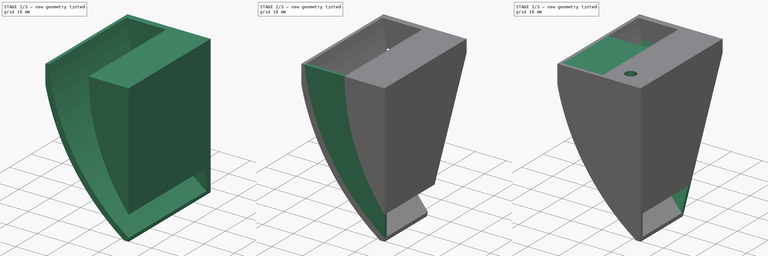
[diagram: build sequence overview — one tinted view per stage of 3, left to right]
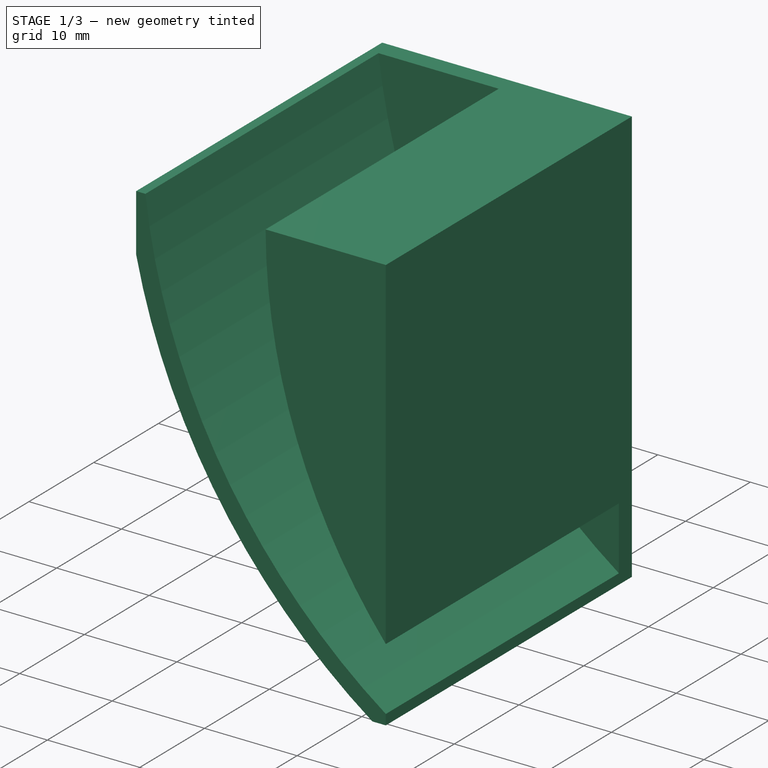
[diagram: stage 1 of 3 — iso view after this stage's code; geometry added in this stage tinted green]
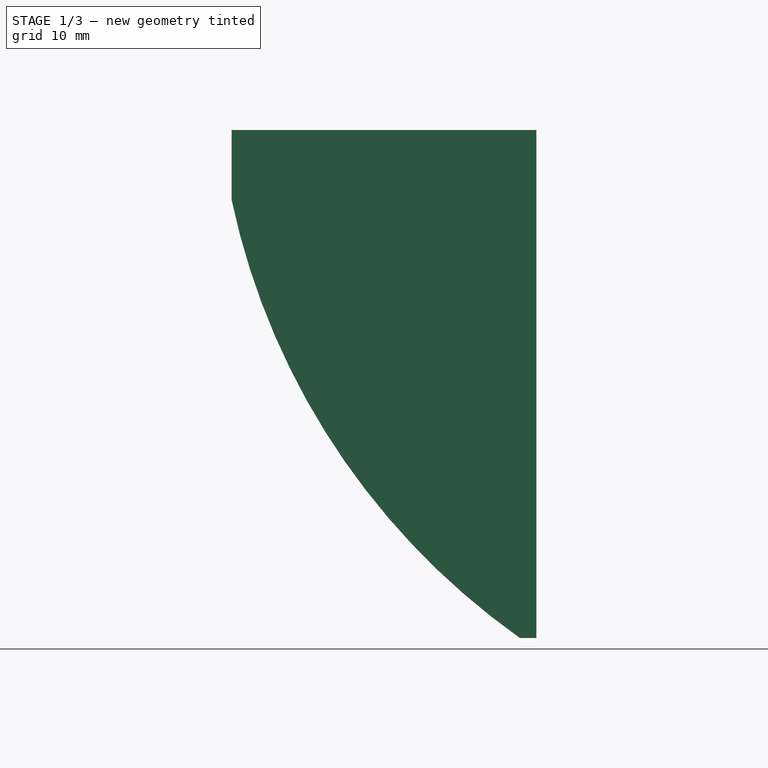
[diagram: stage 1 of 3 — front view after this stage's code; geometry added in this stage tinted green]
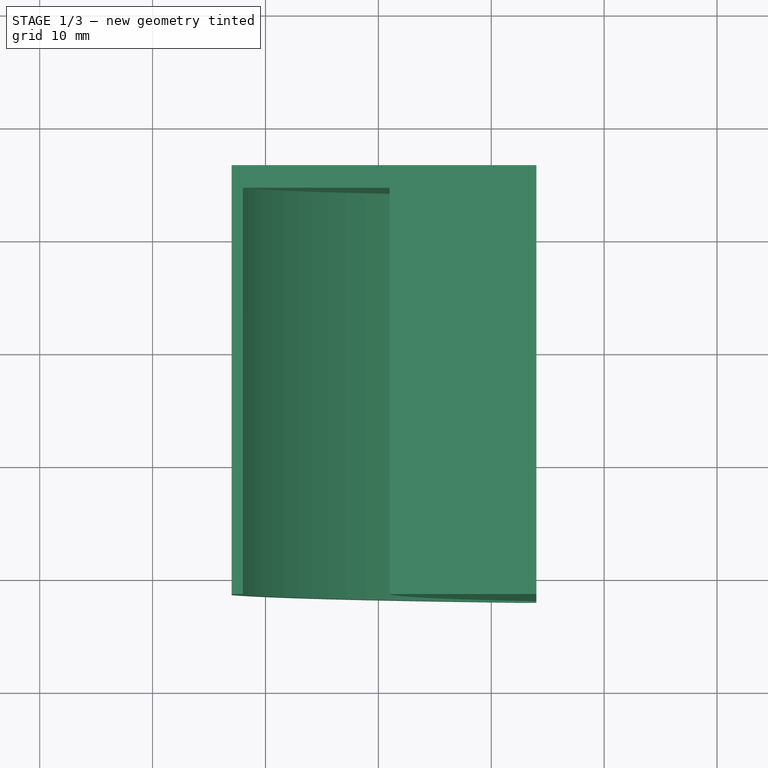
[diagram: stage 1 of 3 — top view after this stage's code; geometry added in this stage tinted green]
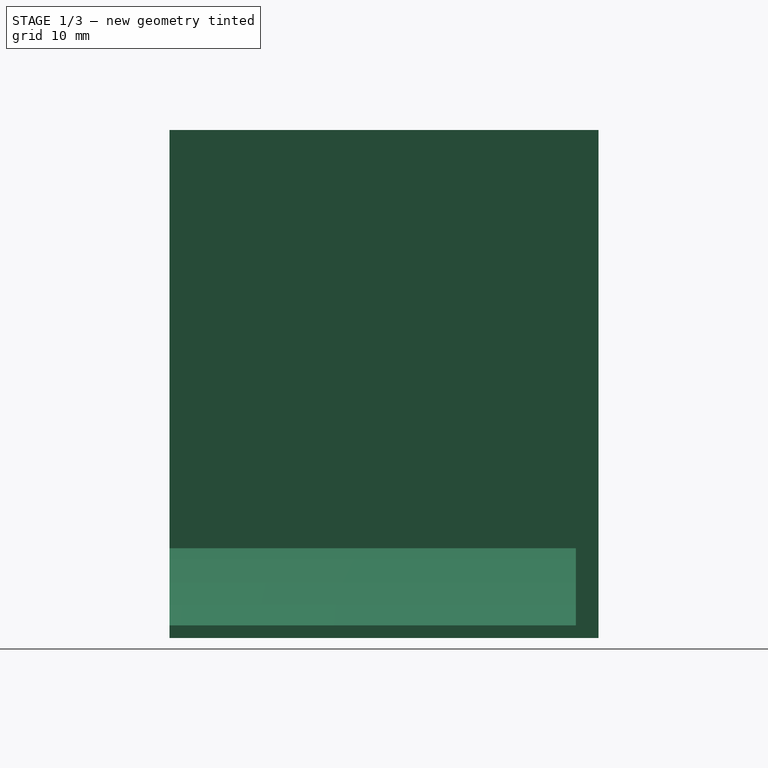
[diagram: stage 1 of 3 — right view after this stage's code; geometry added in this stage tinted green]
FCSTD DOCUMENT  (FreeCAD 0.19R)
Label: FanDuct2
License: All rights reserved
LicenseURL: http://en.wikipedia.org/wiki/All_rights_reserved
objects: Sketcher::SketchObject×9, PartDesign::Pad×4, PartDesign::Pocket×4, PartDesign::Body×1
note: 26 computed .brp shape members not serialized (recipe doc carries the construction recipe); baked Part::Feature solids carry a one-line shape summary decoded from their .brp

FEATURE [Sketcher::SketchObject] Sketch
  FullyConstrained = true
  MapMode = 5
  Support = -> [XY_Plane]
  sketch-geometry (4):
    g0: LineSegment StartX=-16 StartY=6 StartZ=0 EndX=-16 EndY=-32 EndZ=0
    g1: LineSegment StartX=-16 StartY=-32 StartZ=0 EndX=-43 EndY=-32 EndZ=0
    g2: LineSegment StartX=-43 StartY=-32 StartZ=0 EndX=-43 EndY=6 EndZ=0
    g3: LineSegment StartX=-43 StartY=6 StartZ=0 EndX=-16 EndY=6 EndZ=0
  constraints (12):
    c: Coincident(g0,g1)
    c: Horizontal(g1)
    c: Coincident(g1,g2)
    c: Vertical(g2)
    c: Coincident(g3,g0)
    c: Vertical(g0)
    c: DistanceX(g0) = -16
    c: DistanceY(g0) = 6
    c: Horizontal(g3)
    c: DistanceY(g0) = -32
    c: DistanceX(g1) = -43
    c: Coincident(g3,g2)
FEATURE [PartDesign::Pad] Pad
  Direction = (1,1,1)
  Length = 45
  Length2 = 100
  Profile = -> Sketch
  Reversed = true
  Type = 0
FEATURE [Sketcher::SketchObject] Sketch002
  FullyConstrained = true
  MapMode = 5
  Placement = pos=(0,6,0) rot=(0,0.707107,0.707107;3.14159rad)
  Support = -> [Pad]
FEATURE [Sketcher::SketchObject] Sketch003
  FullyConstrained = false
  MapMode = 5
  Placement = pos=(0,-32,0) rot=(1,0,0;1.5708rad)
  Support = -> [Pad]
  sketch-geometry (3):
    g0: ArcOfCircle CenterX=19.4001 CenterY=7.0637 CenterZ=0 NormalX=0 NormalY=0 NormalZ=1 AngleXU=0 Radius=63.7924 StartAngle=3.25255 EndAngle=4.15384
    g1: LineSegment StartX=-14.407 StartY=-47.0339 StartZ=0 EndX=-67.0616 EndY=-46.1936 EndZ=0
    g2: LineSegment StartX=-67.0616 StartY=-46.1936 StartZ=0 EndX=-44 EndY=0 EndZ=0
  constraints (8):
    c: PointOnObject(g0,g-1)
    c: DistanceX(g0) = -44
    c: DistanceX(g0) = 19.4001
    c: DistanceY(g0) = 7.0637
    c: DistanceX(g0) = -14.407
    c: Coincident(g0,g1)
    c: Coincident(g1,g2)
    c: Coincident(g2,g0)
FEATURE [PartDesign::Pocket] Pocket
  BaseFeature = -> Pad
  Length = 5
  Length2 = 100
  Profile = -> Sketch003
  Type = 1
FEATURE [Sketcher::SketchObject] Sketch004
  ExternalGeometry = -> [Pocket]
  FullyConstrained = true
  MapMode = 5
  Placement = pos=(0,-32,0) rot=(1,0,0;1.5708rad)
  Support = -> [Pocket]
  sketch-geometry (4):
    g0: ArcOfCircle CenterX=30.7872 CenterY=0.17109 CenterZ=0 NormalX=0 NormalY=0 NormalZ=1 AngleXU=0 Radius=59.7875 StartAngle=3.14445 EndAngle=3.99216
    g1: ArcOfCircle CenterX=20.3339 CenterY=7.28534 CenterZ=0 NormalX=0 NormalY=0 NormalZ=1 AngleXU=0 Radius=62.7582 StartAngle=3.25794 EndAngle=4.18278
    g2: LineSegment StartX=-8.6459 StartY=-44.7685 StartZ=0 EndX=-11.3714 EndY=-46.8752 EndZ=0
    g3: LineSegment StartX=-29 StartY=-5e-15 StartZ=0 EndX=-42 EndY=0 EndZ=0
  constraints (14):
    c: PointOnObject(g1,g-1)
    c: Distance(g1,g-3) = 1
    c: PointOnObject(g0,g-1)
    c: Distance(g0,g1) = 13
    c: Coincident(g0,g2)
    c: Coincident(g3,g0)
    c: Coincident(g3,g1)
    c: Coincident(g2,g1)
    c: DistanceX(g0) = -8.6459
    c: DistanceY(g0) = -44.7685
    c: DistanceX(g1) = -11.3714
    c: DistanceY(g1) = -46.8752
    c: DistanceX(g1) = 20.3339
    c: DistanceX(g0) = 30.7872
FEATURE [PartDesign::Pocket] Pocket001
  BaseFeature = -> Pocket
  Length = 36
  Length2 = 100
  Profile = -> Sketch004
  Type = 0
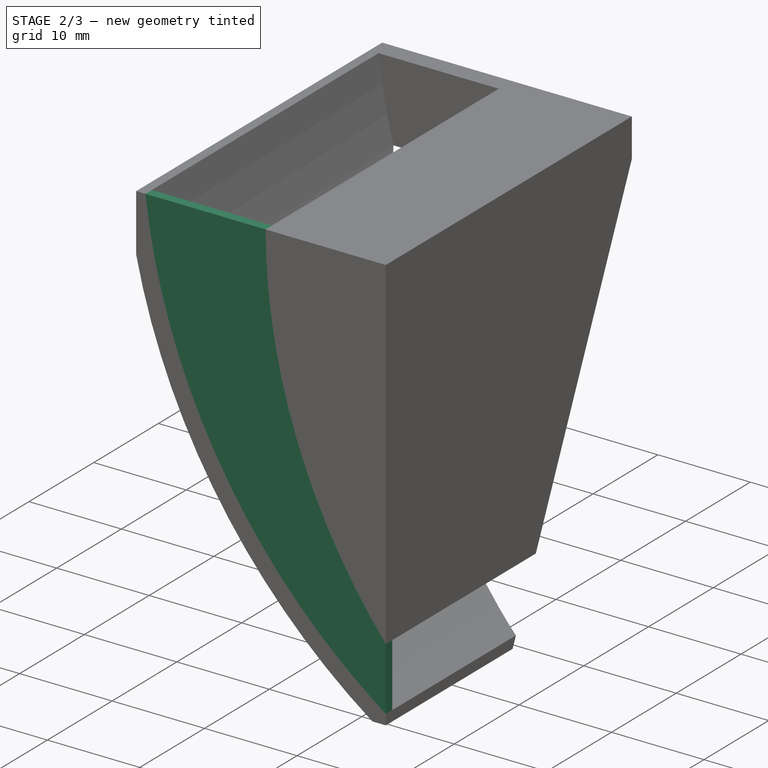
[diagram: stage 2 of 3 — iso view after this stage's code; geometry added in this stage tinted green]
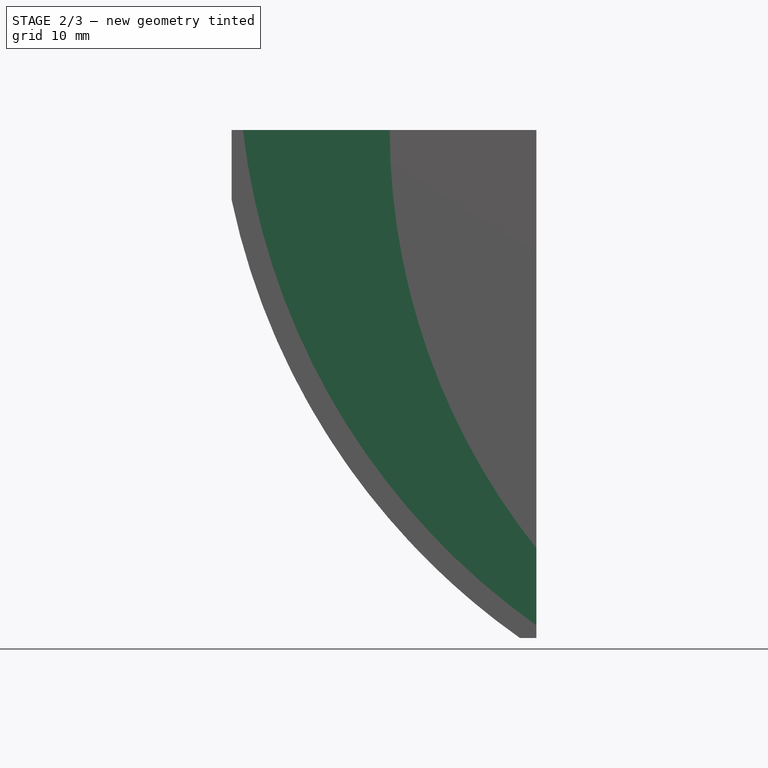
[diagram: stage 2 of 3 — front view after this stage's code; geometry added in this stage tinted green]
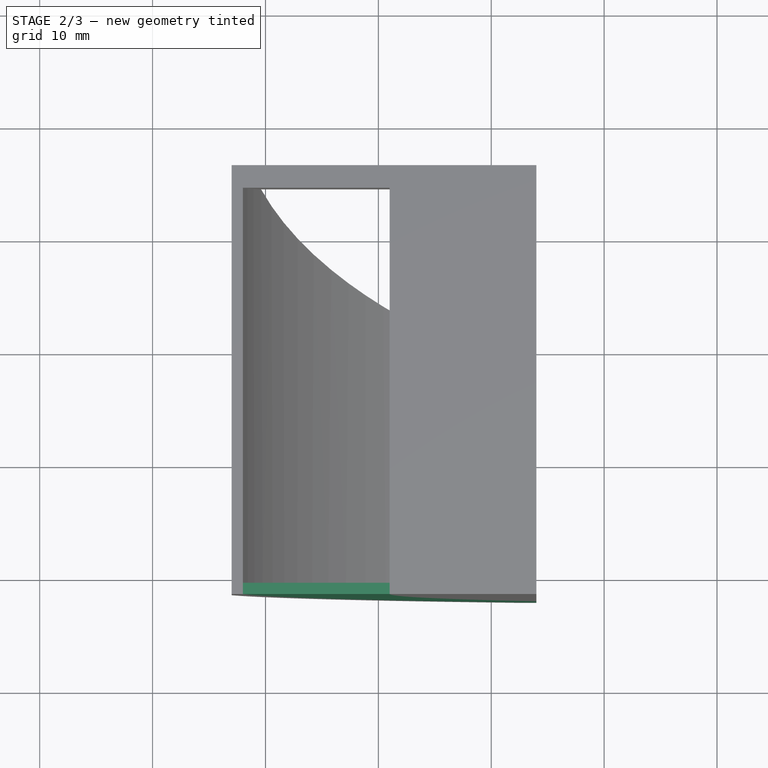
[diagram: stage 2 of 3 — top view after this stage's code; geometry added in this stage tinted green]
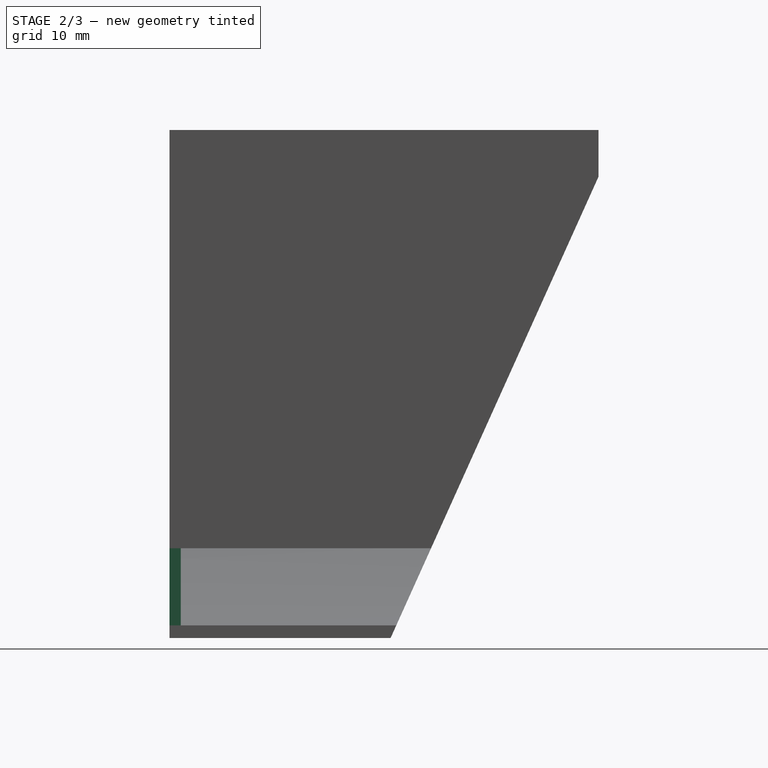
[diagram: stage 2 of 3 — right view after this stage's code; geometry added in this stage tinted green]
FEATURE [Sketcher::SketchObject] Sketch005
  FullyConstrained = false
  MapMode = 5
  Placement = pos=(-16,0,0) rot=(0.57735,0.57735,0.57735;2.0944rad)
  Support = -> [Pocket001]
  sketch-geometry (3):
    g0: LineSegment StartX=15.6864 StartY=17.3504 StartZ=0 EndX=-17.6483 EndY=-56.6108 EndZ=0
    g1: LineSegment StartX=15.6864 StartY=17.3504 StartZ=0 EndX=15.6864 EndY=-59.9964 EndZ=0
    g2: LineSegment StartX=-17.6483 StartY=-56.6108 StartZ=0 EndX=15.6864 EndY=-59.9964 EndZ=0
  constraints (4):
    c: Coincident(g1,g0)
    c: Vertical(g1)
    c: Coincident(g2,g0)
    c: Coincident(g2,g1)
FEATURE [PartDesign::Pocket] Pocket002
  BaseFeature = -> Pocket001
  Length = 5
  Length2 = 100
  Profile = -> Sketch005
  Type = 1
FEATURE [Sketcher::SketchObject] Sketch006
  ExternalGeometry = -> [Pocket002]
  FullyConstrained = true
  MapMode = 5
  Placement = pos=(0,-32,0) rot=(1,0,0;1.5708rad)
  Support = -> [Pocket002]
  sketch-geometry (5):
    g0: ArcOfCircle CenterX=19.4001 CenterY=7.0637 CenterZ=0 NormalX=0 NormalY=0 NormalZ=1 AngleXU=0 Radius=63.7924 StartAngle=3.3509 EndAngle=4.09634
    g1: LineSegment StartX=-43 StartY=-6.19134 StartZ=0 EndX=-43 EndY=0 EndZ=0
    g2: LineSegment StartX=-43 StartY=0 StartZ=0 EndX=-16 EndY=0 EndZ=0
    g3: LineSegment StartX=-16 StartY=0 StartZ=0 EndX=-16 EndY=-45 EndZ=0
    g4: LineSegment StartX=-17.46 StartY=-45.0017 StartZ=0 EndX=-16 EndY=-45 EndZ=0
  constraints (12):
    c: Coincident(g0,g-3)
    c: Coincident(g0,g-3)
    c: Coincident(g1,g0)
    c: PointOnObject(g1,g-1)
    c: Vertical(g1)
    c: Coincident(g2,g1)
    c: Coincident(g2,g-4)
    c: Coincident(g3,g2)
    c: Coincident(g3,g-5)
    c: Coincident(g4,g0)
    c: Coincident(g4,g3)
    c: Distance(g4) = 1.46
FEATURE [PartDesign::Pad] Pad001
  BaseFeature = -> Pocket002
  Direction = (1,1,1)
  Length = 1
  Length2 = 100
  Profile = -> Sketch006
  Reversed = true
  Type = 0
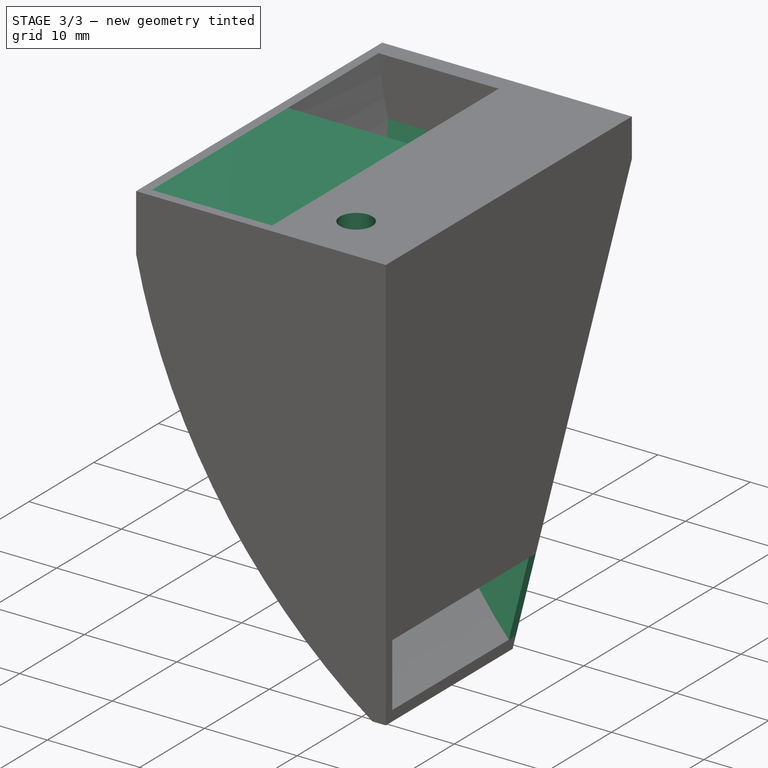
[diagram: stage 3 of 3 — iso view after this stage's code; geometry added in this stage tinted green]
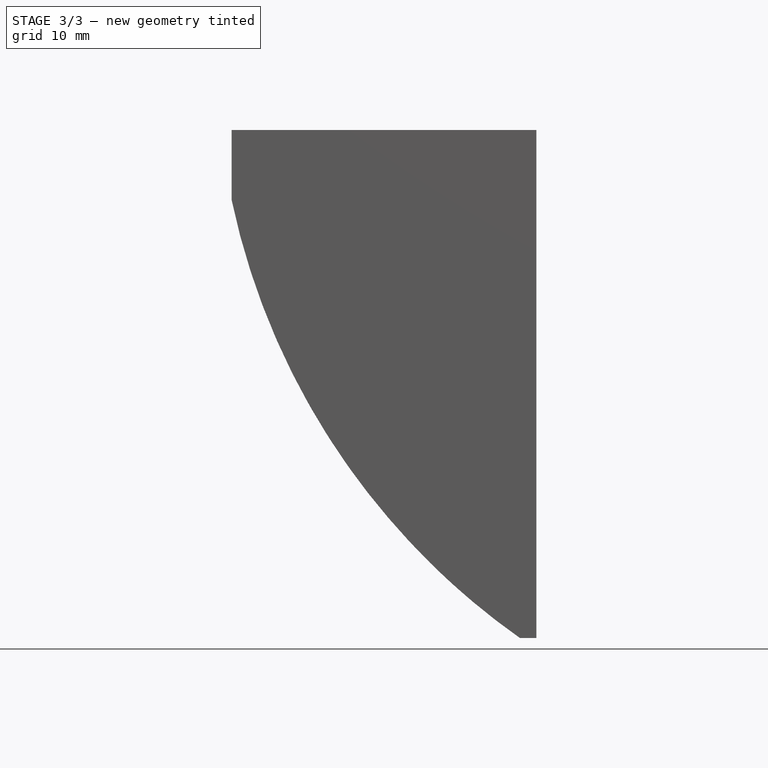
[diagram: stage 3 of 3 — front view after this stage's code; geometry added in this stage tinted green]
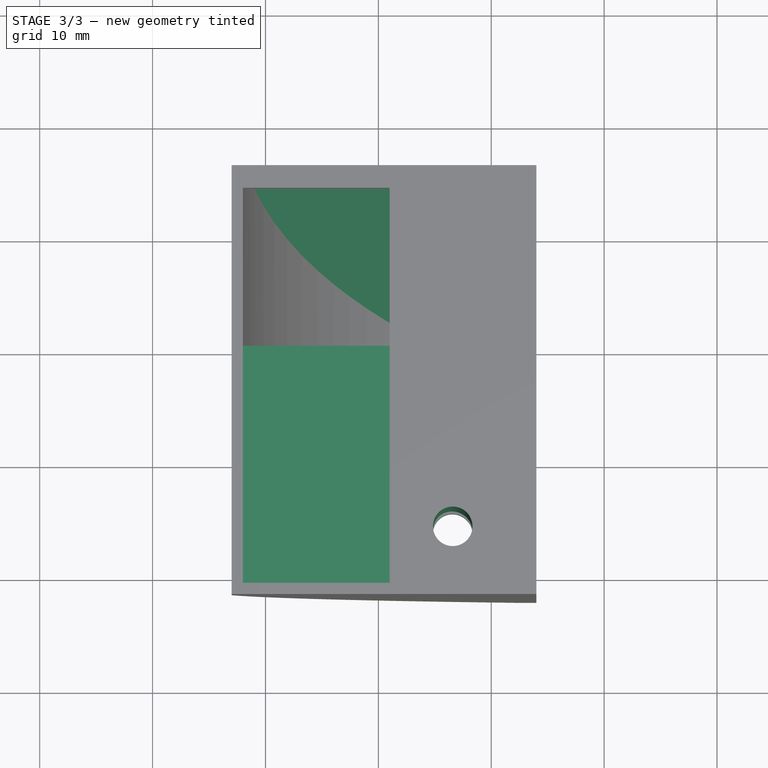
[diagram: stage 3 of 3 — top view after this stage's code; geometry added in this stage tinted green]
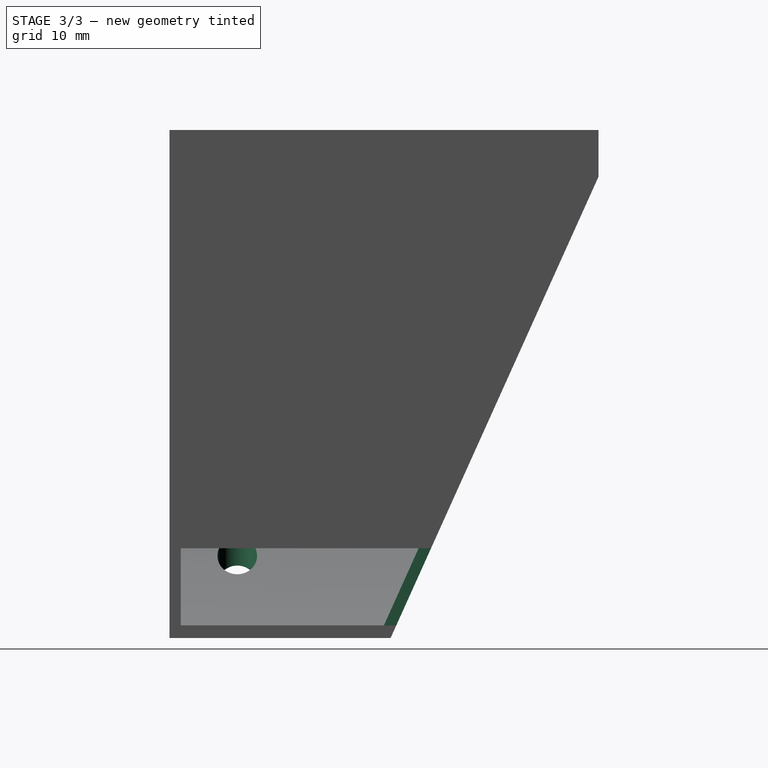
[diagram: stage 3 of 3 — right view after this stage's code; geometry added in this stage tinted green]
FEATURE [Sketcher::SketchObject] Sketch007
  ExternalGeometry = -> [Pad001]
  FullyConstrained = true
  MapMode = 5
  Placement = pos=(0,6.5383,-2.94684) rot=(0,0.83991,0.542725;3.14159rad)
  Support = -> [Pad001]
  sketch-geometry (4):
    g0: LineSegment StartX=16 StartY=-1.31007 StartZ=0 EndX=43 EndY=-1.31007 EndZ=0
    g1: LineSegment StartX=16 StartY=-1.31007 StartZ=0 EndX=16 EndY=-46.127 EndZ=0
    g2: LineSegment StartX=16 StartY=-46.127 StartZ=0 EndX=17.4624 EndY=-46.127 EndZ=0
    g3: ArcOfCircle CenterX=-28.2721 CenterY=9.61781 CenterZ=0 NormalX=0 NormalY=0 NormalZ=1 AngleXU=0 Radius=72.105 StartAngle=5.39946 EndAngle=6.13104
  constraints (9):
    c: Coincident(g-6,g0)
    c: Coincident(g0,g-3)
    c: Coincident(g0,g1)
    c: Coincident(g1,g-7)
    c: Coincident(g1,g2)
    c: Coincident(g2,g-7)
    c: Coincident(g3,g0)
    c: Coincident(g3,g2)
    c: DistanceX(g3) = -28.2721
FEATURE [PartDesign::Pad] Pad002
  BaseFeature = -> Pad001
  Direction = (1,1,1)
  Length = 1
  Length2 = 100
  Profile = -> Sketch007
  Reversed = true
  Type = 0
FEATURE [Sketcher::SketchObject] Sketch008
  ExternalGeometry = -> [Pad002]
  FullyConstrained = true
  MapMode = 5
  Support = -> [Pad002]
  sketch-geometry (4):
    g0: LineSegment StartX=-16 StartY=-10 StartZ=0 EndX=-43 EndY=-10 EndZ=0
    g1: LineSegment StartX=-43 StartY=-10 StartZ=0 EndX=-43 EndY=-32 EndZ=0
    g2: LineSegment StartX=-43 StartY=-32 StartZ=0 EndX=-16 EndY=-32 EndZ=0
    g3: LineSegment StartX=-16 StartY=-32 StartZ=0 EndX=-16 EndY=-10 EndZ=0
  constraints (11):
    c: Coincident(g0,g1)
    c: Coincident(g1,g2)
    c: Coincident(g2,g3)
    c: Coincident(g3,g0)
    c: Horizontal(g0)
    c: Horizontal(g2)
    c: Vertical(g1)
    c: Vertical(g3)
    c: PointOnObject(g0,g-7)
    c: Coincident(g1,g-6)
    c: Distance(g-7,g0) = 16
FEATURE [PartDesign::Pad] Pad003
  BaseFeature = -> Pad002
  Direction = (1,1,1)
  Length = 1
  Length2 = 100
  Profile = -> Sketch008
  Reversed = true
  Type = 0
FEATURE [Sketcher::SketchObject] Sketch009
  ExternalGeometry = -> [Pad003]
  FullyConstrained = false
  MapMode = 5
  Support = -> [Pad003]
  sketch-geometry (1):
    g0: Circle CenterX=-23.4107 CenterY=-26 CenterZ=0 NormalX=0 NormalY=0 NormalZ=1 AngleXU=0 Radius=1.75
  constraints (2):
    c: Diameter(g0) = 3.5
    c: Distance(g0,g-3) = 32
FEATURE [PartDesign::Pocket] Pocket003
  BaseFeature = -> Pad003
  Length = 5
  Length2 = 100
  Profile = -> Sketch009
  Type = 1
FEATURE [PartDesign::Body] Body
  Group = -> [Sketch,Pad,Sketch002,Sketch003,Pocket,Sketch004,Pocket001,Sketch005,Pocket002,Sketch006,Pad001,Sketch007,Pad002,Sketch008,Pad003,Sketch009,Pocket003]
  Origin = -> Origin
  Tip = -> Pocket003
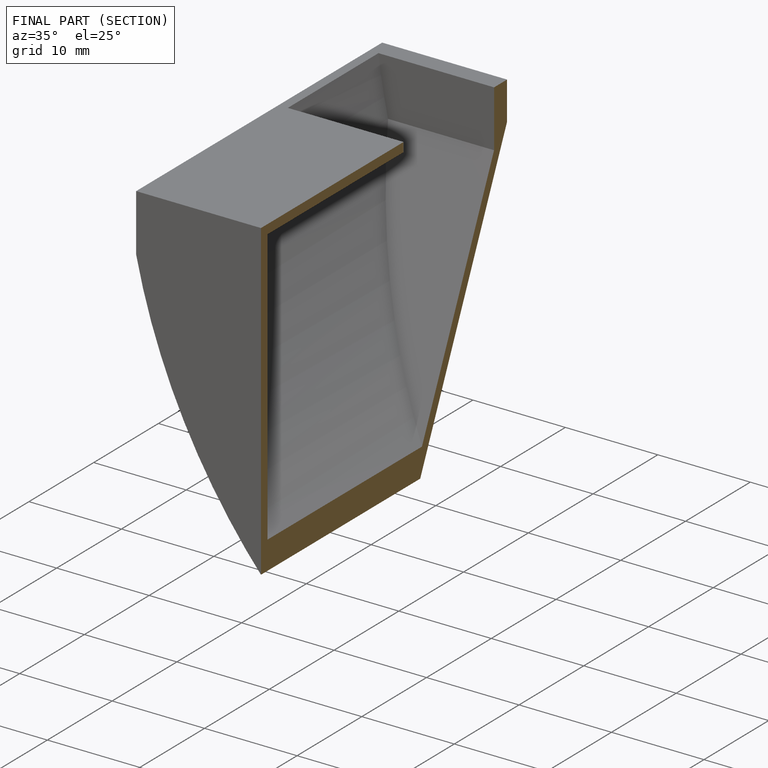
[diagram: finished part — half-section view (interior)]
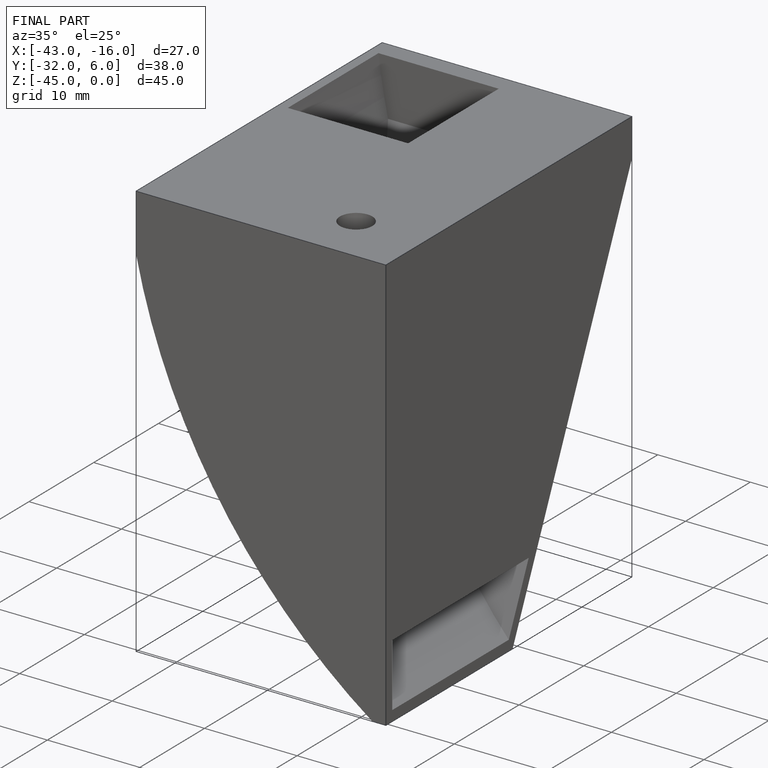
[diagram: finished part — iso view with bounding-box wireframe]
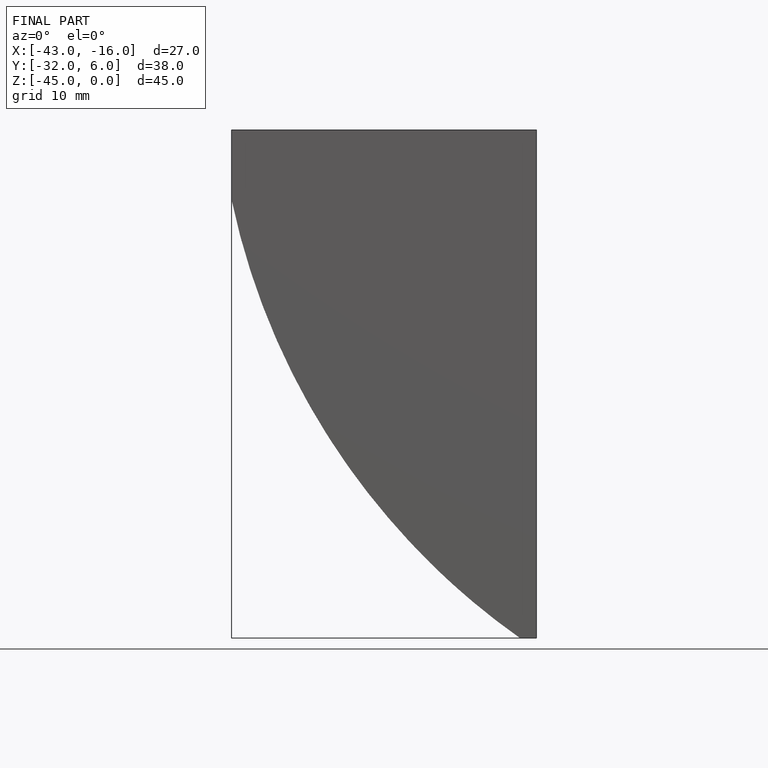
[diagram: finished part — front view with bounding-box wireframe]
